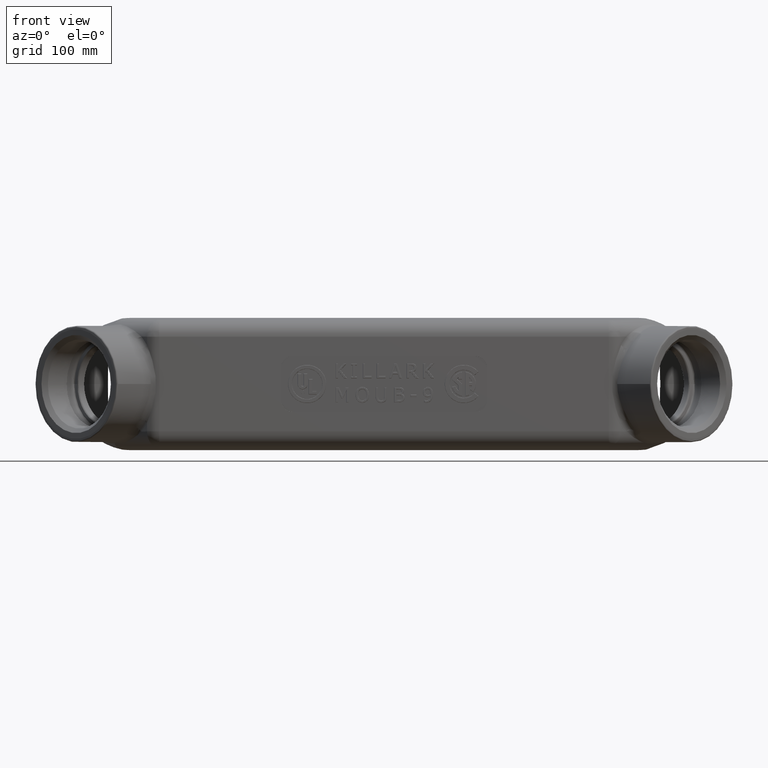
[diagram: clean part render]
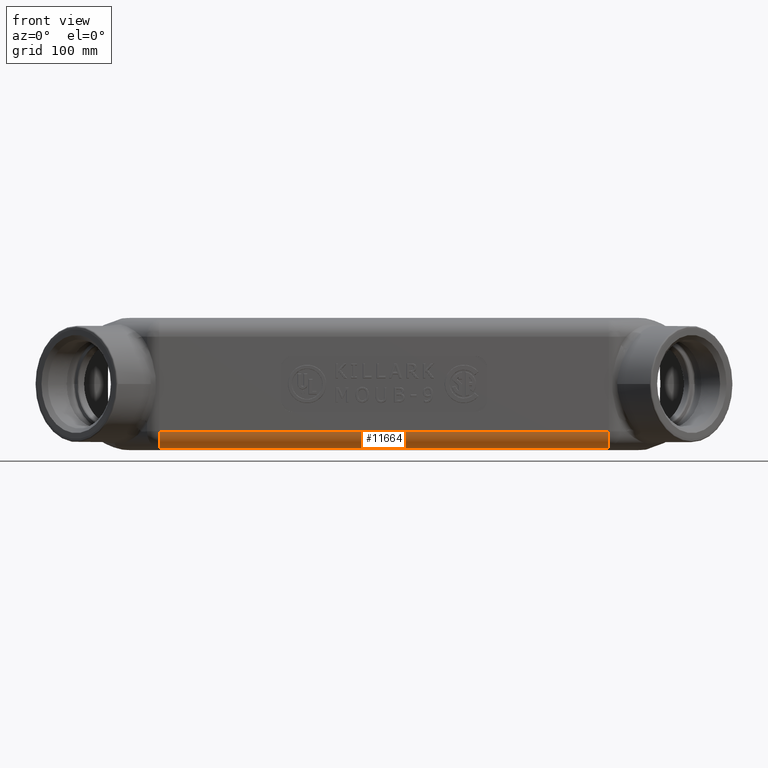
[diagram: same view with one face highlighted and labeled with its STEP entity id]
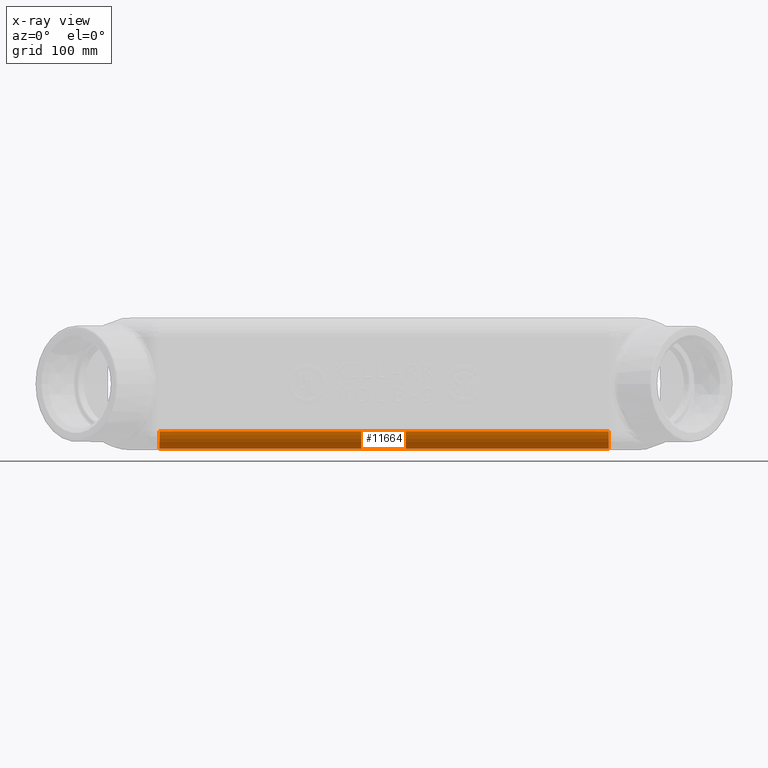
[diagram: x-ray of the same camera — body ghosted, the highlighted face saturated]
A machine part, front view. The second image highlights one B-rep face of the part: STEP entity #11664.
The next image is the same camera in x-ray: the body ghosted, the highlighted face saturated — about 0% of this face is hidden behind the body in this view.
In plain terms, the highlighted cylindrical surface (edge-blend (fillet) strip) has radius 19.05 mm, axis along (-1, 0, 0).
Its self-contained STEP definition (entity closure, byte-faithful):
#349=CIRCLE('',#12458,0.749999999999999);
#352=CIRCLE('',#12463,0.75);
#873=CYLINDRICAL_SURFACE('',#12483,0.75);
#1354=FACE_OUTER_BOUND('',#2059,.T.);
#2059=EDGE_LOOP('',(#9821,#9822,#9823,#9824));
#2695=LINE('',#27497,#3505);
#2725=LINE('',#28387,#3535);
#3505=VECTOR('',#14223,0.393700787401575);
#3535=VECTOR('',#14307,0.393700787401575);
#5197=VERTEX_POINT('',#27153);
#5200=VERTEX_POINT('',#27171);
#5239=VERTEX_POINT('',#27499);
#5240=VERTEX_POINT('',#27505);
#6793=EDGE_CURVE('',#5200,#5197,#2695,.T.);
#6794=EDGE_CURVE('',#5197,#5239,#349,.T.);
#6798=EDGE_CURVE('',#5240,#5200,#352,.T.);
#6858=EDGE_CURVE('',#5239,#5240,#2725,.T.);
#9821=ORIENTED_EDGE('',*,*,#6794,.T.);
#9822=ORIENTED_EDGE('',*,*,#6858,.T.);
#9823=ORIENTED_EDGE('',*,*,#6798,.T.);
#9824=ORIENTED_EDGE('',*,*,#6793,.T.);
#11664=ADVANCED_FACE('',(#1354),#873,.T.);
#12458=AXIS2_PLACEMENT_3D('',#27500,#14226,#14227);
#12463=AXIS2_PLACEMENT_3D('',#27507,#14237,#14238);
#12483=AXIS2_PLACEMENT_3D('',#28386,#14305,#14306);
#14223=DIRECTION('',(1.,0.,-2.3311769545935E-16));
#14226=DIRECTION('center_axis',(-1.,0.,0.));
#14227=DIRECTION('ref_axis',(0.,-0.0261769483078734,-0.999657324975557));
#14237=DIRECTION('center_axis',(1.,0.,-1.86558085163874E-15));
#14238=DIRECTION('ref_axis',(0.,-1.,0.));
#14305=DIRECTION('center_axis',(-1.,0.,2.3311769545935E-16));
#14306=DIRECTION('ref_axis',(0.,-0.716301943424654,-0.69779045984168));
#14307=DIRECTION('',(-1.,0.,2.3311769545935E-16));
#27153=CARTESIAN_POINT('',(9.65808982822018,-2.3633827112309,-2.78186264568574));
#27171=CARTESIAN_POINT('',(-9.65808982822018,-2.3633827112309,-2.78186264568573));
#27497=CARTESIAN_POINT('',(6.75,-2.3633827112309,-2.78186264568574));
#27499=CARTESIAN_POINT('',(9.65808982822018,-3.09375,-2.03211965195407));
#27500=CARTESIAN_POINT('Origin',(9.65808982822018,-2.34375,-2.03211965195407));
#27505=CARTESIAN_POINT('',(-9.65808982822018,-3.09375,-2.03211965195406));
#27507=CARTESIAN_POINT('Origin',(-9.65808982822018,-2.34375,-2.03211965195406));
#28386=CARTESIAN_POINT('Origin',(6.75,-2.34375,-2.03211965195407));
#28387=CARTESIAN_POINT('',(6.75,-3.09375,-2.03211965195407));